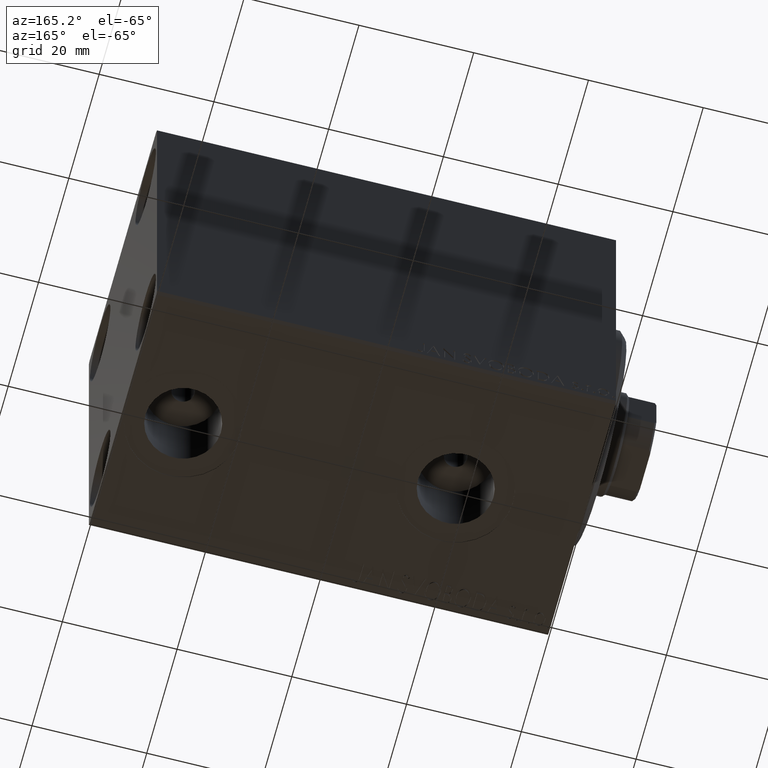
[diagram: clean part render]
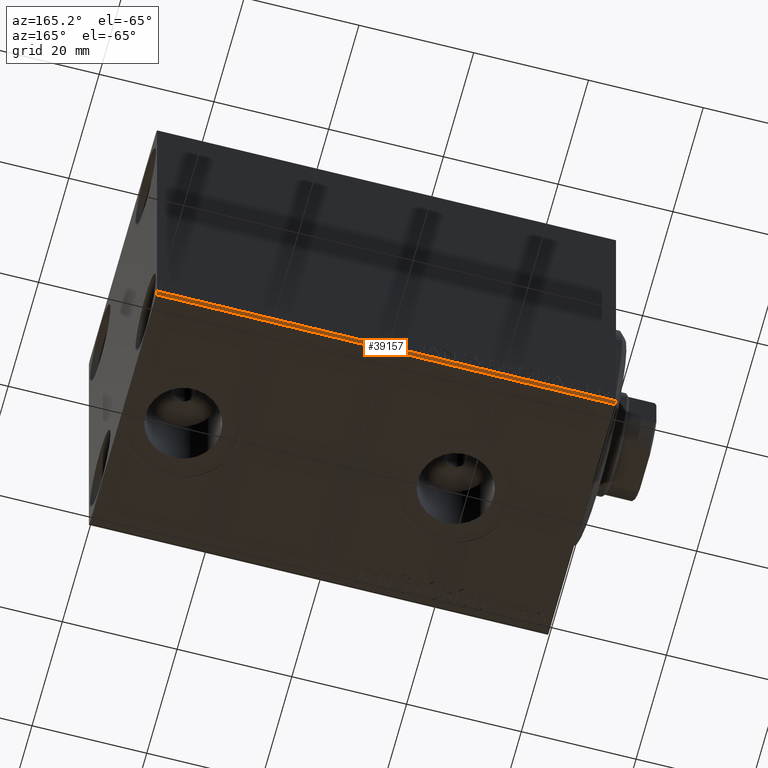
[diagram: same view with one face highlighted and labeled with its STEP entity id]
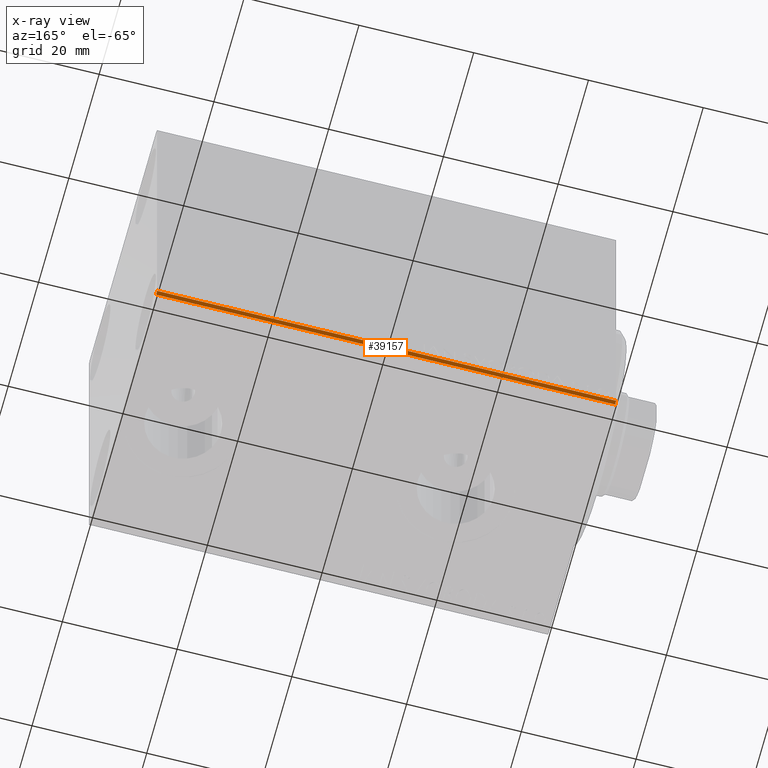
[diagram: x-ray of the same camera — body ghosted, the highlighted face saturated]
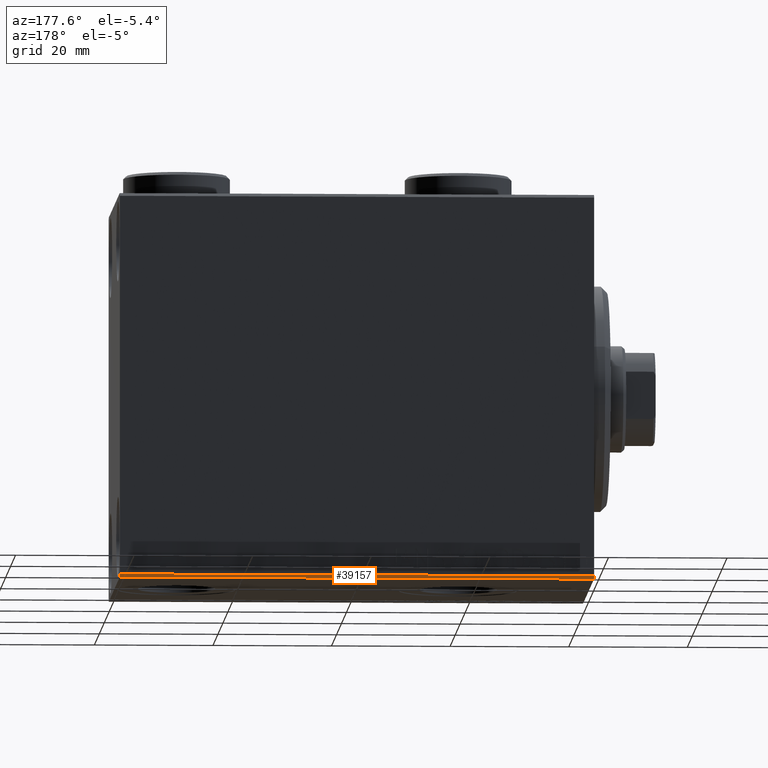
[diagram: same view with one face highlighted and labeled with its STEP entity id]
A machine part, auxiliary view. The second image highlights one B-rep face of the part: STEP entity #39157.
The next image is the same camera in x-ray: the body ghosted, the highlighted face saturated — about 0% of this face is hidden behind the body in this view.
A second angle (auxiliary view) of the same face is appended — the face is thin or edge-on in the first view.
In plain terms, the highlighted planar face has unit normal (0, -0.7071, 0.7071).
Its self-contained STEP definition (entity closure, byte-faithful):
#1542 = VERTEX_POINT ( 'NONE', #13517 ) ;
#1908 = LINE ( 'NONE', #37304, #12810 ) ;
#2676 = VECTOR ( 'NONE', #11139, 1000.000000000000000 ) ;
#3773 = DIRECTION ( 'NONE',  ( 0.000000000000000000, -0.7071067811865475727, 0.7071067811865475727 ) ) ;
#3841 = LINE ( 'NONE', #32596, #2676 ) ;
#4054 = CARTESIAN_POINT ( 'NONE',  ( 80.00000000000000000, 27.25000000000000355, -27.25000000000000355 ) ) ;
#4670 = ORIENTED_EDGE ( 'NONE', *, *, #38839, .F. ) ;
#6298 = CARTESIAN_POINT ( 'NONE',  ( 80.00000000000000000, 22.50000000000000000, -32.00000000000000711 ) ) ;
#7718 = EDGE_CURVE ( 'NONE', #24046, #1542, #3841, .T. ) ;
#7723 = EDGE_CURVE ( 'NONE', #1542, #27878, #11584, .T. ) ;
#7795 = VECTOR ( 'NONE', #17993, 1000.000000000000114 ) ;
#7948 = CARTESIAN_POINT ( 'NONE',  ( 0.000000000000000000, 22.50000000000000000, -32.00000000000000711 ) ) ;
#7951 = ORIENTED_EDGE ( 'NONE', *, *, #27833, .F. ) ;
#11139 = DIRECTION ( 'NONE',  ( -1.000000000000000000, 0.000000000000000000, 0.000000000000000000 ) ) ;
#11584 = LINE ( 'NONE', #7948, #7795 ) ;
#12369 = CARTESIAN_POINT ( 'NONE',  ( 80.00000000000000000, 22.50000000000000000, -32.00000000000000711 ) ) ;
#12810 = VECTOR ( 'NONE', #37077, 1000.000000000000000 ) ;
#13517 = CARTESIAN_POINT ( 'NONE',  ( 0.000000000000000000, 22.50000000000000000, -32.00000000000000711 ) ) ;
#16295 = EDGE_LOOP ( 'NONE', ( #4670, #7951, #33432, #29111 ) ) ;
#17993 = DIRECTION ( 'NONE',  ( 0.000000000000000000, -0.7071067811865474617, -0.7071067811865474617 ) ) ;
#23636 = PLANE ( 'NONE',  #29041 ) ;
#24046 = VERTEX_POINT ( 'NONE', #12369 ) ;
#25424 = VECTOR ( 'NONE', #38560, 1000.000000000000114 ) ;
#27072 = FACE_OUTER_BOUND ( 'NONE', #16295, .T. ) ;
#27833 = EDGE_CURVE ( 'NONE', #27878, #39591, #1908, .T. ) ;
#27878 = VERTEX_POINT ( 'NONE', #29986 ) ;
#28194 = DIRECTION ( 'NONE',  ( -1.000000000000000000, 0.000000000000000000, 0.000000000000000000 ) ) ;
#29041 = AXIS2_PLACEMENT_3D ( 'NONE', #6298, #3773, #28194 ) ;
#29111 = ORIENTED_EDGE ( 'NONE', *, *, #7718, .F. ) ;
#29986 = CARTESIAN_POINT ( 'NONE',  ( 0.000000000000000000, 21.99999999999998579, -32.50000000000000711 ) ) ;
#32596 = CARTESIAN_POINT ( 'NONE',  ( 80.00000000000000000, 22.50000000000000000, -32.00000000000000711 ) ) ;
#33432 = ORIENTED_EDGE ( 'NONE', *, *, #7723, .F. ) ;
#35572 = LINE ( 'NONE', #4054, #25424 ) ;
#37077 = DIRECTION ( 'NONE',  ( 1.000000000000000000, 0.000000000000000000, 0.000000000000000000 ) ) ;
#37304 = CARTESIAN_POINT ( 'NONE',  ( 80.00000000000000000, 22.00000000000000000, -32.50000000000000711 ) ) ;
#38560 = DIRECTION ( 'NONE',  ( -0.000000000000000000, 0.7071067811865474617, 0.7071067811865474617 ) ) ;
#38839 = EDGE_CURVE ( 'NONE', #39591, #24046, #35572, .T. ) ;
#39157 = ADVANCED_FACE ( 'NONE', ( #27072 ), #23636, .F. ) ;
#39591 = VERTEX_POINT ( 'NONE', #43627 ) ;
#43627 = CARTESIAN_POINT ( 'NONE',  ( 80.00000000000000000, 21.99999999999998579, -32.50000000000000711 ) ) ;